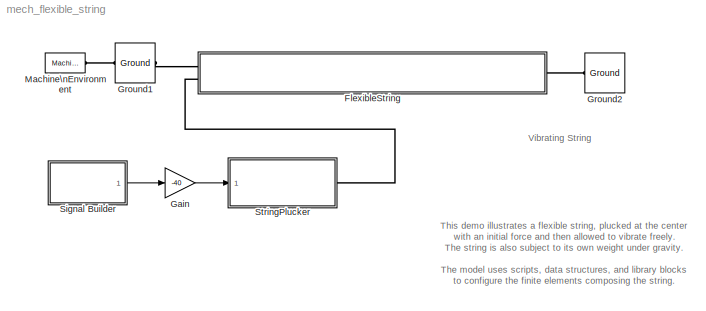
MODEL mech_flexible_string
KIND model
CONFIG InitFcn = \n%-----------------------------------------\n% Defined in the block mask now. I have left it here because it can be \n% used as a starting point of describing a material data file format\n%-----------------------------------------\nfBeamElement.material = 'Mild Steel';\n\n% Beam element density (Kg/m^3)\nfBeamElement.density = 7800;\n\n% Beam element Youngs Modulus (N/m^2)\nfBeamElement.youngsM =...<+518ch>
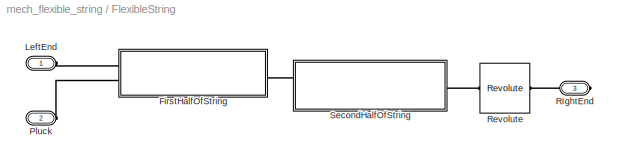
BLOCK [SubSystem] FlexibleString
  FunctionWithSeparateData = off
  MaskHideContents = off
  MinAlgLoopOccurrences = off
  Opaque = off
  Ports = [0, 0, 0, 0, 0, 2, 1]
  PropExecContextOutsideSubsystem = off
  RTWSystemCode = Auto
  RequestExecContextInheritance = off
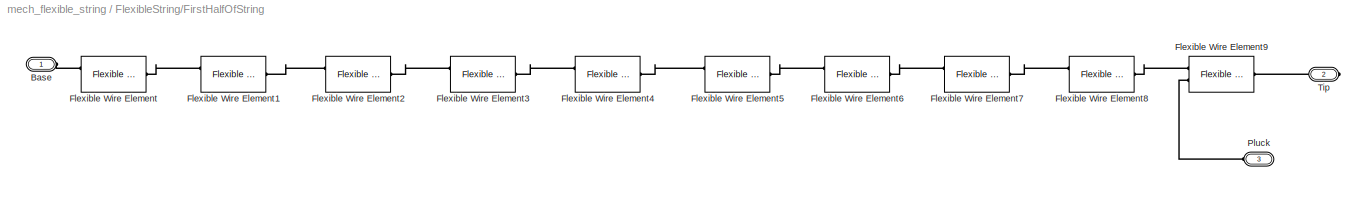
BLOCK [SubSystem] FlexibleString/FirstHalfOfString
  FunctionWithSeparateData = off
  MaskHideContents = off
  MinAlgLoopOccurrences = off
  Opaque = off
  Ports = [0, 0, 0, 0, 0, 2, 1]
  PropExecContextOutsideSubsystem = off
  RTWSystemCode = Auto
  RequestExecContextInheritance = off
BLOCK [PMIOPort] FlexibleString/FirstHalfOfString/Base
  Port = 1
  Side = Left
BLOCK [Reference] FlexibleString/FirstHalfOfString/Flexible Wire Element  REF=mech_flexible_element_lib/Flexible Wire Element  (lib defined in mdl_9af6a22eb84a)
  FunctionWithSeparateData = off
  Inertia = fBeamElement.Inertia
  Ports = [0, 0, 0, 0, 0, 2, 1]
  RTWMemSecDataConstants = Inherit from model
  RTWMemSecDataInternal = Inherit from model
  RTWMemSecDataParameters = Inherit from model
  RTWMemSecFuncExecute = Inherit from model
  RTWMemSecFuncInitTerm = Inherit from model
  ShowPortLabels = FromPortIcon
  SourceBlock = mech_flexible_element_lib/Flexible Wire Element
  SourceType = Flexible wire element
  SystemSampleTime = -1
  beamDir = fBeamElement.beamDir
  cgLeng = fBeamElement.cgLeng
  density = fBeamElement.density
  length = fBeamElement.length
  matDamping = fBeamElement.matDamping
  material = Mild Steel
  wireDia = fBeamElement.diameter
  youngsM = fBeamElement.youngsM
BLOCK [Reference] FlexibleString/FirstHalfOfString/Flexible Wire Element1  REF=mech_flexible_element_lib/Flexible Wire Element  (lib defined in mdl_9af6a22eb84a)
  FunctionWithSeparateData = off
  Inertia = fBeamElement.Inertia
  Ports = [0, 0, 0, 0, 0, 2, 1]
  RTWMemSecDataConstants = Inherit from model
  RTWMemSecDataInternal = Inherit from model
  RTWMemSecDataParameters = Inherit from model
  RTWMemSecFuncExecute = Inherit from model
  RTWMemSecFuncInitTerm = Inherit from model
  ShowPortLabels = FromPortIcon
  SourceBlock = mech_flexible_element_lib/Flexible Wire Element
  SourceType = Flexible wire element
  SystemSampleTime = -1
  beamDir = fBeamElement.beamDir
  cgLeng = fBeamElement.cgLeng
  density = fBeamElement.density
  length = fBeamElement.length
  matDamping = fBeamElement.matDamping
  material = Mild Steel
  wireDia = fBeamElement.diameter
  youngsM = fBeamElement.youngsM
BLOCK [Reference] FlexibleString/FirstHalfOfString/Flexible Wire Element2  REF=mech_flexible_element_lib/Flexible Wire Element  (lib defined in mdl_9af6a22eb84a)
  FunctionWithSeparateData = off
  Inertia = fBeamElement.Inertia
  Ports = [0, 0, 0, 0, 0, 2, 1]
  RTWMemSecDataConstants = Inherit from model
  RTWMemSecDataInternal = Inherit from model
  RTWMemSecDataParameters = Inherit from model
  RTWMemSecFuncExecute = Inherit from model
  RTWMemSecFuncInitTerm = Inherit from model
  ShowPortLabels = FromPortIcon
  SourceBlock = mech_flexible_element_lib/Flexible Wire Element
  SourceType = Flexible wire element
  SystemSampleTime = -1
  beamDir = fBeamElement.beamDir
  cgLeng = fBeamElement.cgLeng
  density = fBeamElement.density
  length = fBeamElement.length
  matDamping = fBeamElement.matDamping
  material = Mild Steel
  wireDia = fBeamElement.diameter
  youngsM = fBeamElement.youngsM
BLOCK [Reference] FlexibleString/FirstHalfOfString/Flexible Wire Element3  REF=mech_flexible_element_lib/Flexible Wire Element  (lib defined in mdl_9af6a22eb84a)
  FunctionWithSeparateData = off
  Inertia = fBeamElement.Inertia
  Ports = [0, 0, 0, 0, 0, 2, 1]
  RTWMemSecDataConstants = Inherit from model
  RTWMemSecDataInternal = Inherit from model
  RTWMemSecDataParameters = Inherit from model
  RTWMemSecFuncExecute = Inherit from model
  RTWMemSecFuncInitTerm = Inherit from model
  ShowPortLabels = FromPortIcon
  SourceBlock = mech_flexible_element_lib/Flexible Wire Element
  SourceType = Flexible wire element
  SystemSampleTime = -1
  beamDir = fBeamElement.beamDir
  cgLeng = fBeamElement.cgLeng
  density = fBeamElement.density
  length = fBeamElement.length
  matDamping = fBeamElement.matDamping
  material = Mild Steel
  wireDia = fBeamElement.diameter
  youngsM = fBeamElement.youngsM
BLOCK [Reference] FlexibleString/FirstHalfOfString/Flexible Wire Element4  REF=mech_flexible_element_lib/Flexible Wire Element  (lib defined in mdl_9af6a22eb84a)
  FunctionWithSeparateData = off
  Inertia = fBeamElement.Inertia
  Ports = [0, 0, 0, 0, 0, 2, 1]
  RTWMemSecDataConstants = Inherit from model
  RTWMemSecDataInternal = Inherit from model
  RTWMemSecDataParameters = Inherit from model
  RTWMemSecFuncExecute = Inherit from model
  RTWMemSecFuncInitTerm = Inherit from model
  ShowPortLabels = FromPortIcon
  SourceBlock = mech_flexible_element_lib/Flexible Wire Element
  SourceType = Flexible wire element
  SystemSampleTime = -1
  beamDir = fBeamElement.beamDir
  cgLeng = fBeamElement.cgLeng
  density = fBeamElement.density
  length = fBeamElement.length
  matDamping = fBeamElement.matDamping
  material = Mild Steel
  wireDia = fBeamElement.diameter
  youngsM = fBeamElement.youngsM
BLOCK [Reference] FlexibleString/FirstHalfOfString/Flexible Wire Element5  REF=mech_flexible_element_lib/Flexible Wire Element  (lib defined in mdl_9af6a22eb84a)
  FunctionWithSeparateData = off
  Inertia = fBeamElement.Inertia
  Ports = [0, 0, 0, 0, 0, 2, 1]
  RTWMemSecDataConstants = Inherit from model
  RTWMemSecDataInternal = Inherit from model
  RTWMemSecDataParameters = Inherit from model
  RTWMemSecFuncExecute = Inherit from model
  RTWMemSecFuncInitTerm = Inherit from model
  ShowPortLabels = FromPortIcon
  SourceBlock = mech_flexible_element_lib/Flexible Wire Element
  SourceType = Flexible wire element
  SystemSampleTime = -1
  beamDir = fBeamElement.beamDir
  cgLeng = fBeamElement.cgLeng
  density = fBeamElement.density
  length = fBeamElement.length
  matDamping = fBeamElement.matDamping
  material = Mild Steel
  wireDia = fBeamElement.diameter
  youngsM = fBeamElement.youngsM
BLOCK [Reference] FlexibleString/FirstHalfOfString/Flexible Wire Element6  REF=mech_flexible_element_lib/Flexible Wire Element  (lib defined in mdl_9af6a22eb84a)
  FunctionWithSeparateData = off
  Inertia = fBeamElement.Inertia
  Ports = [0, 0, 0, 0, 0, 2, 1]
  RTWMemSecDataConstants = Inherit from model
  RTWMemSecDataInternal = Inherit from model
  RTWMemSecDataParameters = Inherit from model
  RTWMemSecFuncExecute = Inherit from model
  RTWMemSecFuncInitTerm = Inherit from model
  ShowPortLabels = FromPortIcon
  SourceBlock = mech_flexible_element_lib/Flexible Wire Element
  SourceType = Flexible wire element
  SystemSampleTime = -1
  beamDir = fBeamElement.beamDir
  cgLeng = fBeamElement.cgLeng
  density = fBeamElement.density
  length = fBeamElement.length
  matDamping = fBeamElement.matDamping
  material = Mild Steel
  wireDia = fBeamElement.diameter
  youngsM = fBeamElement.youngsM
BLOCK [Reference] FlexibleString/FirstHalfOfString/Flexible Wire Element7  REF=mech_flexible_element_lib/Flexible Wire Element  (lib defined in mdl_9af6a22eb84a)
  FunctionWithSeparateData = off
  Inertia = fBeamElement.Inertia
  Ports = [0, 0, 0, 0, 0, 2, 1]
  RTWMemSecDataConstants = Inherit from model
  RTWMemSecDataInternal = Inherit from model
  RTWMemSecDataParameters = Inherit from model
  RTWMemSecFuncExecute = Inherit from model
  RTWMemSecFuncInitTerm = Inherit from model
  ShowPortLabels = FromPortIcon
  SourceBlock = mech_flexible_element_lib/Flexible Wire Element
  SourceType = Flexible wire element
  SystemSampleTime = -1
  beamDir = fBeamElement.beamDir
  cgLeng = fBeamElement.cgLeng
  density = fBeamElement.density
  length = fBeamElement.length
  matDamping = fBeamElement.matDamping
  material = Mild Steel
  wireDia = fBeamElement.diameter
  youngsM = fBeamElement.youngsM
BLOCK [Reference] FlexibleString/FirstHalfOfString/Flexible Wire Element8  REF=mech_flexible_element_lib/Flexible Wire Element  (lib defined in mdl_9af6a22eb84a)
  FunctionWithSeparateData = off
  Inertia = fBeamElement.Inertia
  Ports = [0, 0, 0, 0, 0, 2, 1]
  RTWMemSecDataConstants = Inherit from model
  RTWMemSecDataInternal = Inherit from model
  RTWMemSecDataParameters = Inherit from model
  RTWMemSecFuncExecute = Inherit from model
  RTWMemSecFuncInitTerm = Inherit from model
  ShowPortLabels = FromPortIcon
  SourceBlock = mech_flexible_element_lib/Flexible Wire Element
  SourceType = Flexible wire element
  SystemSampleTime = -1
  beamDir = fBeamElement.beamDir
  cgLeng = fBeamElement.cgLeng
  density = fBeamElement.density
  length = fBeamElement.length
  matDamping = fBeamElement.matDamping
  material = Mild Steel
  wireDia = fBeamElement.diameter
  youngsM = fBeamElement.youngsM
BLOCK [Reference] FlexibleString/FirstHalfOfString/Flexible Wire Element9  REF=mech_flexible_element_lib/Flexible Wire Element  (lib defined in mdl_9af6a22eb84a)
  FunctionWithSeparateData = off
  Inertia = fBeamElement.Inertia
  Ports = [0, 0, 0, 0, 0, 2, 1]
  RTWMemSecDataConstants = Inherit from model
  RTWMemSecDataInternal = Inherit from model
  RTWMemSecDataParameters = Inherit from model
  RTWMemSecFuncExecute = Inherit from model
  RTWMemSecFuncInitTerm = Inherit from model
  ShowPortLabels = FromPortIcon
  SourceBlock = mech_flexible_element_lib/Flexible Wire Element
  SourceType = Flexible wire element
  SystemSampleTime = -1
  beamDir = fBeamElement.beamDir
  cgLeng = fBeamElement.cgLeng
  density = fBeamElement.density
  length = fBeamElement.length
  matDamping = fBeamElement.matDamping
  material = Mild Steel
  wireDia = fBeamElement.diameter
  youngsM = fBeamElement.youngsM
BLOCK [PMIOPort] FlexibleString/FirstHalfOfString/Pluck
  Port = 3
  Side = Left
BLOCK [PMIOPort] FlexibleString/FirstHalfOfString/Tip
  Port = 2
  Side = Right
BLOCK [PMIOPort] FlexibleString/LeftEnd
  Port = 1
  Side = Left
BLOCK [PMIOPort] FlexibleString/Pluck
  Port = 2
  Side = Left
BLOCK [PMIOPort] FlexibleString/RIghtEnd
  Port = 3
  Side = Right
BLOCK [Reference] FlexibleString/Revolute  REF=mblibv1/Joints/Revolute
  ClassName = Joint
  CutJoint = off
  DialogClass = JointBlock
  DialogController = MECH.DynMechDlgSource
  LConnTagsString = __newl0
  LeftPortType = blob
  MarkAsCut = off
  NumSAPorts = 0
  PhysicalDomain = mechanical
  Ports = [0, 0, 0, 0, 0, 1, 1]
  PrimitiveProps = R1$INERTIAL$[0 0 1]$revolute
  Primitives = revolute
  R1Axis = [0 0 1]
  RConnTagsString = __newr0
  RightPortType = blob
  SourceBlock = mblibv1/Joints/Revolute
  SourceType = Revolute
  SubClassName = Unknown
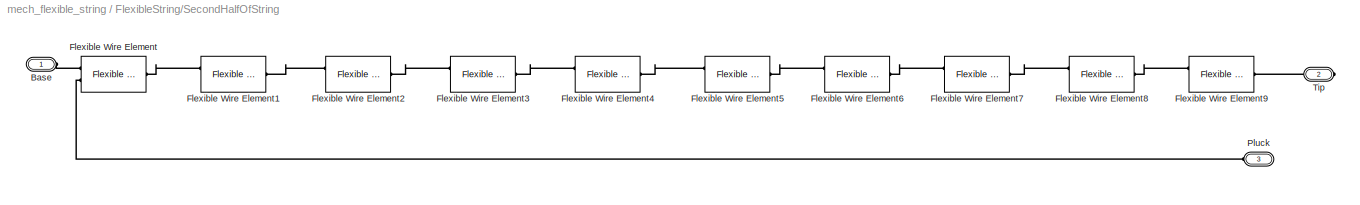
BLOCK [SubSystem] FlexibleString/SecondHalfOfString
  FunctionWithSeparateData = off
  MaskHideContents = off
  MinAlgLoopOccurrences = off
  Opaque = off
  Ports = [0, 0, 0, 0, 0, 2, 1]
  PropExecContextOutsideSubsystem = off
  RTWSystemCode = Auto
  RequestExecContextInheritance = off
BLOCK [PMIOPort] FlexibleString/SecondHalfOfString/Base
  Port = 1
  Side = Left
BLOCK [Reference] FlexibleString/SecondHalfOfString/Flexible Wire Element  REF=mech_flexible_element_lib/Flexible Wire Element  (lib defined in mdl_9af6a22eb84a)
  FunctionWithSeparateData = off
  Inertia = fBeamElement.Inertia
  Ports = [0, 0, 0, 0, 0, 2, 1]
  RTWMemSecDataConstants = Inherit from model
  RTWMemSecDataInternal = Inherit from model
  RTWMemSecDataParameters = Inherit from model
  RTWMemSecFuncExecute = Inherit from model
  RTWMemSecFuncInitTerm = Inherit from model
  ShowPortLabels = FromPortIcon
  SourceBlock = mech_flexible_element_lib/Flexible Wire Element
  SourceType = Flexible wire element
  SystemSampleTime = -1
  beamDir = fBeamElement.beamDir
  cgLeng = fBeamElement.cgLeng
  density = fBeamElement.density
  length = fBeamElement.length
  matDamping = fBeamElement.matDamping
  material = Mild Steel
  wireDia = fBeamElement.diameter
  youngsM = fBeamElement.youngsM
BLOCK [Reference] FlexibleString/SecondHalfOfString/Flexible Wire Element1  REF=mech_flexible_element_lib/Flexible Wire Element  (lib defined in mdl_9af6a22eb84a)
  FunctionWithSeparateData = off
  Inertia = fBeamElement.Inertia
  Ports = [0, 0, 0, 0, 0, 2, 1]
  RTWMemSecDataConstants = Inherit from model
  RTWMemSecDataInternal = Inherit from model
  RTWMemSecDataParameters = Inherit from model
  RTWMemSecFuncExecute = Inherit from model
  RTWMemSecFuncInitTerm = Inherit from model
  ShowPortLabels = FromPortIcon
  SourceBlock = mech_flexible_element_lib/Flexible Wire Element
  SourceType = Flexible wire element
  SystemSampleTime = -1
  beamDir = fBeamElement.beamDir
  cgLeng = fBeamElement.cgLeng
  density = fBeamElement.density
  length = fBeamElement.length
  matDamping = fBeamElement.matDamping
  material = Mild Steel
  wireDia = fBeamElement.diameter
  youngsM = fBeamElement.youngsM
BLOCK [Reference] FlexibleString/SecondHalfOfString/Flexible Wire Element2  REF=mech_flexible_element_lib/Flexible Wire Element  (lib defined in mdl_9af6a22eb84a)
  FunctionWithSeparateData = off
  Inertia = fBeamElement.Inertia
  Ports = [0, 0, 0, 0, 0, 2, 1]
  RTWMemSecDataConstants = Inherit from model
  RTWMemSecDataInternal = Inherit from model
  RTWMemSecDataParameters = Inherit from model
  RTWMemSecFuncExecute = Inherit from model
  RTWMemSecFuncInitTerm = Inherit from model
  ShowPortLabels = FromPortIcon
  SourceBlock = mech_flexible_element_lib/Flexible Wire Element
  SourceType = Flexible wire element
  SystemSampleTime = -1
  beamDir = fBeamElement.beamDir
  cgLeng = fBeamElement.cgLeng
  density = fBeamElement.density
  length = fBeamElement.length
  matDamping = fBeamElement.matDamping
  material = Mild Steel
  wireDia = fBeamElement.diameter
  youngsM = fBeamElement.youngsM
BLOCK [Reference] FlexibleString/SecondHalfOfString/Flexible Wire Element3  REF=mech_flexible_element_lib/Flexible Wire Element  (lib defined in mdl_9af6a22eb84a)
  FunctionWithSeparateData = off
  Inertia = fBeamElement.Inertia
  Ports = [0, 0, 0, 0, 0, 2, 1]
  RTWMemSecDataConstants = Inherit from model
  RTWMemSecDataInternal = Inherit from model
  RTWMemSecDataParameters = Inherit from model
  RTWMemSecFuncExecute = Inherit from model
  RTWMemSecFuncInitTerm = Inherit from model
  ShowPortLabels = FromPortIcon
  SourceBlock = mech_flexible_element_lib/Flexible Wire Element
  SourceType = Flexible wire element
  SystemSampleTime = -1
  beamDir = fBeamElement.beamDir
  cgLeng = fBeamElement.cgLeng
  density = fBeamElement.density
  length = fBeamElement.length
  matDamping = fBeamElement.matDamping
  material = Mild Steel
  wireDia = fBeamElement.diameter
  youngsM = fBeamElement.youngsM
BLOCK [Reference] FlexibleString/SecondHalfOfString/Flexible Wire Element4  REF=mech_flexible_element_lib/Flexible Wire Element  (lib defined in mdl_9af6a22eb84a)
  FunctionWithSeparateData = off
  Inertia = fBeamElement.Inertia
  Ports = [0, 0, 0, 0, 0, 2, 1]
  RTWMemSecDataConstants = Inherit from model
  RTWMemSecDataInternal = Inherit from model
  RTWMemSecDataParameters = Inherit from model
  RTWMemSecFuncExecute = Inherit from model
  RTWMemSecFuncInitTerm = Inherit from model
  ShowPortLabels = FromPortIcon
  SourceBlock = mech_flexible_element_lib/Flexible Wire Element
  SourceType = Flexible wire element
  SystemSampleTime = -1
  beamDir = fBeamElement.beamDir
  cgLeng = fBeamElement.cgLeng
  density = fBeamElement.density
  length = fBeamElement.length
  matDamping = fBeamElement.matDamping
  material = Mild Steel
  wireDia = fBeamElement.diameter
  youngsM = fBeamElement.youngsM
BLOCK [Reference] FlexibleString/SecondHalfOfString/Flexible Wire Element5  REF=mech_flexible_element_lib/Flexible Wire Element  (lib defined in mdl_9af6a22eb84a)
  FunctionWithSeparateData = off
  Inertia = fBeamElement.Inertia
  Ports = [0, 0, 0, 0, 0, 2, 1]
  RTWMemSecDataConstants = Inherit from model
  RTWMemSecDataInternal = Inherit from model
  RTWMemSecDataParameters = Inherit from model
  RTWMemSecFuncExecute = Inherit from model
  RTWMemSecFuncInitTerm = Inherit from model
  ShowPortLabels = FromPortIcon
  SourceBlock = mech_flexible_element_lib/Flexible Wire Element
  SourceType = Flexible wire element
  SystemSampleTime = -1
  beamDir = fBeamElement.beamDir
  cgLeng = fBeamElement.cgLeng
  density = fBeamElement.density
  length = fBeamElement.length
  matDamping = fBeamElement.matDamping
  material = Mild Steel
  wireDia = fBeamElement.diameter
  youngsM = fBeamElement.youngsM
BLOCK [Reference] FlexibleString/SecondHalfOfString/Flexible Wire Element6  REF=mech_flexible_element_lib/Flexible Wire Element  (lib defined in mdl_9af6a22eb84a)
  FunctionWithSeparateData = off
  Inertia = fBeamElement.Inertia
  Ports = [0, 0, 0, 0, 0, 2, 1]
  RTWMemSecDataConstants = Inherit from model
  RTWMemSecDataInternal = Inherit from model
  RTWMemSecDataParameters = Inherit from model
  RTWMemSecFuncExecute = Inherit from model
  RTWMemSecFuncInitTerm = Inherit from model
  ShowPortLabels = FromPortIcon
  SourceBlock = mech_flexible_element_lib/Flexible Wire Element
  SourceType = Flexible wire element
  SystemSampleTime = -1
  beamDir = fBeamElement.beamDir
  cgLeng = fBeamElement.cgLeng
  density = fBeamElement.density
  length = fBeamElement.length
  matDamping = fBeamElement.matDamping
  material = Mild Steel
  wireDia = fBeamElement.diameter
  youngsM = fBeamElement.youngsM
BLOCK [Reference] FlexibleString/SecondHalfOfString/Flexible Wire Element7  REF=mech_flexible_element_lib/Flexible Wire Element  (lib defined in mdl_9af6a22eb84a)
  FunctionWithSeparateData = off
  Inertia = fBeamElement.Inertia
  Ports = [0, 0, 0, 0, 0, 2, 1]
  RTWMemSecDataConstants = Inherit from model
  RTWMemSecDataInternal = Inherit from model
  RTWMemSecDataParameters = Inherit from model
  RTWMemSecFuncExecute = Inherit from model
  RTWMemSecFuncInitTerm = Inherit from model
  ShowPortLabels = FromPortIcon
  SourceBlock = mech_flexible_element_lib/Flexible Wire Element
  SourceType = Flexible wire element
  SystemSampleTime = -1
  beamDir = fBeamElement.beamDir
  cgLeng = fBeamElement.cgLeng
  density = fBeamElement.density
  length = fBeamElement.length
  matDamping = fBeamElement.matDamping
  material = Mild Steel
  wireDia = fBeamElement.diameter
  youngsM = fBeamElement.youngsM
BLOCK [Reference] FlexibleString/SecondHalfOfString/Flexible Wire Element8  REF=mech_flexible_element_lib/Flexible Wire Element  (lib defined in mdl_9af6a22eb84a)
  FunctionWithSeparateData = off
  Inertia = fBeamElement.Inertia
  Ports = [0, 0, 0, 0, 0, 2, 1]
  RTWMemSecDataConstants = Inherit from model
  RTWMemSecDataInternal = Inherit from model
  RTWMemSecDataParameters = Inherit from model
  RTWMemSecFuncExecute = Inherit from model
  RTWMemSecFuncInitTerm = Inherit from model
  ShowPortLabels = FromPortIcon
  SourceBlock = mech_flexible_element_lib/Flexible Wire Element
  SourceType = Flexible wire element
  SystemSampleTime = -1
  beamDir = fBeamElement.beamDir
  cgLeng = fBeamElement.cgLeng
  density = fBeamElement.density
  length = fBeamElement.length
  matDamping = fBeamElement.matDamping
  material = Mild Steel
  wireDia = fBeamElement.diameter
  youngsM = fBeamElement.youngsM
BLOCK [Reference] FlexibleString/SecondHalfOfString/Flexible Wire Element9  REF=mech_flexible_element_lib/Flexible Wire Element  (lib defined in mdl_9af6a22eb84a)
  FunctionWithSeparateData = off
  Inertia = fBeamElement.Inertia
  Ports = [0, 0, 0, 0, 0, 2, 1]
  RTWMemSecDataConstants = Inherit from model
  RTWMemSecDataInternal = Inherit from model
  RTWMemSecDataParameters = Inherit from model
  RTWMemSecFuncExecute = Inherit from model
  RTWMemSecFuncInitTerm = Inherit from model
  ShowPortLabels = FromPortIcon
  SourceBlock = mech_flexible_element_lib/Flexible Wire Element
  SourceType = Flexible wire element
  SystemSampleTime = -1
  beamDir = fBeamElement.beamDir
  cgLeng = fBeamElement.cgLeng
  density = fBeamElement.density
  length = fBeamElement.length
  matDamping = fBeamElement.matDamping
  material = Mild Steel
  wireDia = fBeamElement.diameter
  youngsM = fBeamElement.youngsM
BLOCK [PMIOPort] FlexibleString/SecondHalfOfString/Pluck
  Port = 3
  Side = Left
BLOCK [PMIOPort] FlexibleString/SecondHalfOfString/Tip
  Port = 2
  Side = Right
BLOCK [Gain] Gain
  Gain = -40
  OutDataType = sfix(16)
  OutDataTypeMode = Inherit via internal rule
  OutDataTypeStr = Inherit: Inherit via internal rule
  OutScaling = 2^0
  ParamDataTypeStr = Inherit: Inherit via internal rule
  ParameterDataType = sfix(16)
  ParameterDataTypeMode = Inherit via internal rule
  ParameterScaling = 2^0
  SaturateOnIntegerOverflow = off
BLOCK [Reference] Ground1  REF=mblibv1/Bodies/Ground
  ClassName = Ground
  CoordPosition = [0 0 0]
  CoordPositionUnits = m
  DialogClass = GroundBlock
  DialogController = MECH.DynMechDlgSource
  FunctionWithSeparateData = off
  LeftPortType = env
  MachineId = [0 0]
  PhysicalDomain = Mechanical
  Ports = [0, 0, 0, 0, 0, 1, 1]
  RTWMemSecDataConstants = Inherit from model
  RTWMemSecDataInternal = Inherit from model
  RTWMemSecDataParameters = Inherit from model
  RTWMemSecFuncExecute = Inherit from model
  RTWMemSecFuncInitTerm = Inherit from model
  RightPortType = workingframe
  ShowEnvPort = on
  ShowPortLabels = FromPortIcon
  SourceBlock = mblibv1/Bodies/Ground
  SourceType = Ground
  StateVectorMgrId = -1
  SystemSampleTime = -1
  UserData = DataTag0
  UserDataPersistent = on
BLOCK [Reference] Ground2  REF=mblibv1/Bodies/Ground
  ClassName = Ground
  CoordPosition = [1 0 0]
  CoordPositionUnits = m
  DialogClass = GroundBlock
  DialogController = MECH.DynMechDlgSource
  FunctionWithSeparateData = off
  LeftPortType = env
  MachineId = [0 0]
  PhysicalDomain = Mechanical
  Ports = [0, 0, 0, 0, 0, 0, 1]
  RTWMemSecDataConstants = Inherit from model
  RTWMemSecDataInternal = Inherit from model
  RTWMemSecDataParameters = Inherit from model
  RTWMemSecFuncExecute = Inherit from model
  RTWMemSecFuncInitTerm = Inherit from model
  RightPortType = workingframe
  ShowEnvPort = off
  ShowPortLabels = FromPortIcon
  SourceBlock = mblibv1/Bodies/Ground
  SourceType = Ground
  StateVectorMgrId = -1
  SystemSampleTime = -1
  UserData = DataTag1
  UserDataPersistent = on
BLOCK [Reference] Machine\nEnvironment  REF=mblibv1/Bodies/Machine\nEnvironment
  AnalysisType = Forward dynamics
  AngularAssemblyTolerance = 1e-3
  AngularAssemblyToleranceUnits = rad
  ClassName = Environment
  ConstraintAbsTolerance = 1e-4
  ConstraintRelTolerance = 1e-4
  ConstraintSolverType = Machine precision
  DialogController = MECH.DialogSource
  DialogTemplateClass = MECH.MachineEnvironment
  Dimensionality = Auto-detect
  FunctionWithSeparateData = off
  Gravity = [0 -9.81 0]
  GravityAsSignal = off
  GravityUnits = m/s^2
  LinearAssemblyTolerance = 1e-3
  LinearAssemblyToleranceUnits = m
  PerturbationSize = 1e-5
  PhysicalDomain = Mechanical
  PortType = env
  Ports = [0, 0, 0, 0, 0, 0, 1]
  RTWMemSecDataConstants = Inherit from model
  RTWMemSecDataInternal = Inherit from model
  RTWMemSecDataParameters = Inherit from model
  RTWMemSecFuncExecute = Inherit from model
  RTWMemSecFuncInitTerm = Inherit from model
  RedundancyAnalysisTolerance = 1e-14
  RedundancyAnalysisToleranceType = Automatically select tolerance
  ShowPortLabels = FromPortIcon
  SourceBlock = mblibv1/Bodies/Machine\nEnvironment
  SourceType = Machine Environment
  StatePerturbationType = Fixed
  SyncWhenCopied = off
  SystemSampleTime = -1
  Tag = Factory ground
  UseRobustSingularityHandling = off
  VisualizeMachine = on
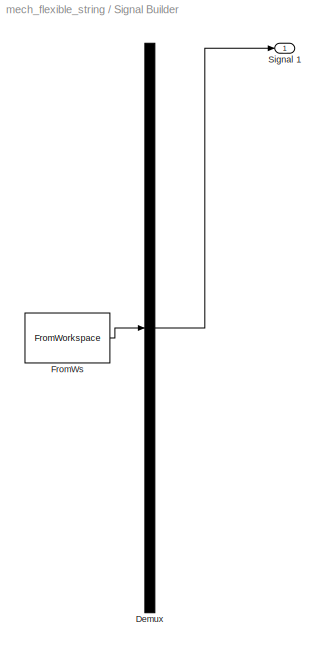
BLOCK [SubSystem] Signal Builder
  AncestorBlock = mech_flexible_element_lib/FlexibleElementActuator/Signal Builder
  ClipboardFcn = sigbuilder_block('clipboard');
  CloseFcn = sigbuilder_block('close');
  CopyFcn = sigbuilder_block('copy');
  DeleteFcn = sigbuilder_block('delete');
  FunctionWithSeparateData = off
  LoadFcn = sigbuilder_block('load');
  MaskDescription = Sigbuilder GUI
  MaskDisplay = plot(0,0,100,100,[10,10,40,40,10],[80,20,20,80,80],[40,10],[50,50], [40,27,10],[65,72,56],[40,25,25,10],[28,28,43,43]);
  MaskHideContents = off
  MaskIconFrame = on
  MaskIconOpaque = off
  MaskIconRotate = port
  MaskIconUnits = autoscale
  MaskInitialization = if ~strcmp(get_param(bdroot(gcbh),'SimulationStatus'),'stopped') tuvar = sigbuilder_block('maskInit'); end
  MaskType = Sigbuilder block
  MinAlgLoopOccurrences = off
  ModelCloseFcn = sigbuilder_block('modelClose');
  NameChangeFcn = sigbuilder_block('namechange');
  Opaque = off
  OpenFcn = sigbuilder_block('open',[63.75 88.5 550.5 399.75 ]);
  Ports = [0, 1]
  PreSaveFcn = sigbuilder_block('preSave');
  PropExecContextOutsideSubsystem = off
  RTWSystemCode = Auto
  RequestExecContextInheritance = off
  StartFcn = sigbuilder_block('start');
  StopFcn = sigbuilder_block('stop');
  Tag = STV Subsys
BLOCK [Demux] Signal Builder/Demux
  Outputs = 1
  Ports = [1, 1]
  Tag = STV Demux
BLOCK [FromWorkspace] Signal Builder/FromWs
  SampleTime = 0
  SigBuilderData = DataTag2
  Tag = STV FromWs
  VariableName = tuvar
  VnvData = DataTag3
  ZeroCross = on
BLOCK [Outport] Signal Builder/Signal 1
  IconDisplay = Port number
  OutDataType = sfix(16)
  OutScaling = 2^0
  Tag = STV Outport
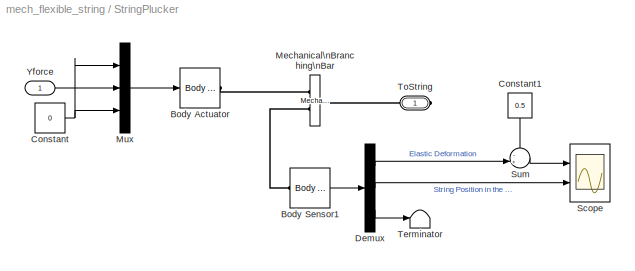
BLOCK [SubSystem] StringPlucker
  FunctionWithSeparateData = off
  MaskHideContents = off
  MinAlgLoopOccurrences = off
  Opaque = off
  Ports = [1, 0, 0, 0, 0, 0, 1]
  PropExecContextOutsideSubsystem = off
  RTWSystemCode = Auto
  RequestExecContextInheritance = off
BLOCK [Reference] StringPlucker/Body Actuator  REF=mblibv1/Sensors & \nActuators/Body Actuator
  AccelerationUnits = m/s^2
  ActiveIO = on
  ActuationStyle = Force
  Angle = off
  AngleUnits = deg
  ArcAccelerationUnits = deg/s^2
  ArcVelocityUnits = deg/s
  ClassName = BodyActuatorForceTorque
  CoordPosition = on
  CoordPositionUnits = m
  DialogClass = MechanicalActuatorBlock
  DialogController = MECH.DynMechDlgSource
  Force = on
  ForceUnits = N
  FunctionWithSeparateData = off
  PhysicalDomain = Mechanical
  PortType = blob
  Ports = [1, 0, 0, 0, 0, 0, 1]
  RTWMemSecDataConstants = Inherit from model
  RTWMemSecDataInternal = Inherit from model
  RTWMemSecDataParameters = Inherit from model
  RTWMemSecFuncExecute = Inherit from model
  RTWMemSecFuncInitTerm = Inherit from model
  ReferenceFrame = Absolute (World)
  ShowPortLabels = FromPortIcon
  SourceBlock = mblibv1/Sensors & \nActuators/Body Actuator
  SourceType = Body Actuator
  SystemSampleTime = -1
  Torque = off
  TorqueUnits = N-m
  VelocityUnits = m/s
  Width = 3
BLOCK [Reference] StringPlucker/Body Sensor1  REF=mblibv1/Sensors & \nActuators/Body Sensor
  Acceleration = off
  AccelerationUnits = m/s^2
  ActiveIO = on
  Angle = on
  AngleUnits = deg
  ArcAcceleration = off
  ArcAccelerationUnits = deg/s^2
  ArcVelocity = off
  ArcVelocityUnits = rad/s
  ClassName = BodySensor
  CoordPosition = on
  CoordPositionUnits = m
  DialogClass = MechanicalSensorBlock
  DialogController = MECH.DynMechDlgSource
  FunctionWithSeparateData = off
  Muxed = on
  OutputVector = [ 3 ]
  PhysicalDomain = Mechanical
  PortType = blob
  Ports = [0, 1, 0, 0, 0, 1]
  Pose = off
  Quaternion = on
  QuaternionDDT = off
  QuaternionDT = off
  QuaternionUnits = off
  RTWMemSecDataConstants = Inherit from model
  RTWMemSecDataInternal = Inherit from model
  RTWMemSecDataParameters = Inherit from model
  RTWMemSecFuncExecute = Inherit from model
  RTWMemSecFuncInitTerm = Inherit from model
  ReferenceFrame = Absolute (World)
  ShowPortLabels = FromPortIcon
  SourceBlock = mblibv1/Sensors & \nActuators/Body Sensor
  SourceType = Body Sensor
  SystemSampleTime = -1
  Velocity = off
  VelocityUnits = m/s
  Width = 3
BLOCK [Constant] StringPlucker/Constant
  OutDataType = sfix(16)
  OutScaling = 2^0
  Value = 0
BLOCK [Constant] StringPlucker/Constant1
  OutDataType = sfix(16)
  OutScaling = 2^0
  Value = 0.5
BLOCK [Demux] StringPlucker/Demux
  DisplayOption = bar
  Outputs = 3
  Ports = [1, 3]
BLOCK [Reference] StringPlucker/Mechanical\nBranching\nBar  REF=mblibv1/Utilities/Mechanical\nBranching\nBar
  ClassName = BranchingBar
  DialogClass = MechanicalBranchingBarBlock
  DialogController = MECH.DynMechDlgSource
  LConnTagsString = _newl0
  LeftPortType = blob
  NumSAPorts = 2
  PhysicalDomain = mechanical
  Ports = [0, 0, 0, 0, 0, 1, 2]
  RConnTagsString = SA0|SA1
  RightPortType = blob
  SourceBlock = mblibv1/Utilities/Mechanical\nBranching\nBar
  SourceType = Mechanical Branching Bar
  SubClassName = Unknown
BLOCK [Mux] StringPlucker/Mux
  DisplayOption = bar
  Inputs = 3
  Ports = [3, 1]
BLOCK [Scope] StringPlucker/Scope
  DataFormat = StructureWithTime
  Floating = off
  NumInputPorts = 2
  Ports = [2]
  SampleTime = 0
  TimeRange = 1.4
  YMax = 0.01~0.5
  YMin = -0.02~-1
BLOCK [Sum] StringPlucker/Sum
  IconShape = round
  InputSameDT = off
  Inputs = -+|
  OutDataType = sfix(16)
  OutDataTypeMode = Inherit via internal rule
  OutDataTypeStr = Inherit: Inherit via internal rule
  OutScaling = 2^0
  Ports = [2, 1]
  SaturateOnIntegerOverflow = off
BLOCK [Terminator] StringPlucker/Terminator
BLOCK [PMIOPort] StringPlucker/ToString
  Port = 1
  Side = Right
BLOCK [Inport] StringPlucker/Yforce
  IconDisplay = Port number
  OutDataType = sfix(16)
  OutScaling = 2^0
ANNOTATION (root): This demo illustrates a flexible string, plucked at the center\nwith an initial force and then allowed to vibrate freely.\nThe string is also subject to its own weight under gravity.\n\nThe model uses scripts, data structures, and library blocks\nto configure the finite elements composing the string.\n\n- Reference -\n\nKlaus-Jurgen Bathe, Finite Element Procedures, Prentice Hall Inc, 1996
ANNOTATION (root): Vibrating String
LINE Gain:1 -> StringPlucker:1
LINE Signal Builder/Demux:1 -> Signal Builder/Signal 1:1
LINE Signal Builder/FromWs:1 -> Signal Builder/Demux:1
LINE Signal Builder:1 -> Gain:1
LINE StringPlucker/Body Sensor1:1 -> StringPlucker/Demux:1
LINE StringPlucker/Constant1:1 -> StringPlucker/Sum:1
NET StringPlucker/Constant:1 -> StringPlucker/Mux:1, StringPlucker/Mux:3
LINE StringPlucker/Demux:1 -> StringPlucker/Sum:2
LINE StringPlucker/Demux:2 -> StringPlucker/Scope:2
LINE StringPlucker/Demux:3 -> StringPlucker/Terminator:1
LINE StringPlucker/Mux:1 -> StringPlucker/Body Actuator:1
LINE StringPlucker/Sum:1 -> StringPlucker/Scope:1
LINE StringPlucker/Yforce:1 -> StringPlucker/Mux:2
PLINE FlexibleString/FirstHalfOfString/Base:RConn1 -- FlexibleString/FirstHalfOfString/Flexible Wire Element:LConn1
PLINE FlexibleString/FirstHalfOfString/Flexible Wire Element1:LConn1 -- FlexibleString/FirstHalfOfString/Flexible Wire Element:RConn1
PLINE FlexibleString/FirstHalfOfString/Flexible Wire Element1:RConn1 -- FlexibleString/FirstHalfOfString/Flexible Wire Element2:LConn1
PLINE FlexibleString/FirstHalfOfString/Flexible Wire Element2:RConn1 -- FlexibleString/FirstHalfOfString/Flexible Wire Element3:LConn1
PLINE FlexibleString/FirstHalfOfString/Flexible Wire Element3:RConn1 -- FlexibleString/FirstHalfOfString/Flexible Wire Element4:LConn1
PLINE FlexibleString/FirstHalfOfString/Flexible Wire Element4:RConn1 -- FlexibleString/FirstHalfOfString/Flexible Wire Element5:LConn1
PLINE FlexibleString/FirstHalfOfString/Flexible Wire Element5:RConn1 -- FlexibleString/FirstHalfOfString/Flexible Wire Element6:LConn1
PLINE FlexibleString/FirstHalfOfString/Flexible Wire Element6:RConn1 -- FlexibleString/FirstHalfOfString/Flexible Wire Element7:LConn1
PLINE FlexibleString/FirstHalfOfString/Flexible Wire Element7:RConn1 -- FlexibleString/FirstHalfOfString/Flexible Wire Element8:LConn1
PLINE FlexibleString/FirstHalfOfString/Flexible Wire Element8:RConn1 -- FlexibleString/FirstHalfOfString/Flexible Wire Element9:LConn1
PLINE FlexibleString/FirstHalfOfString/Flexible Wire Element9:LConn2 -- FlexibleString/FirstHalfOfString/Pluck:RConn1
PLINE FlexibleString/FirstHalfOfString/Flexible Wire Element9:RConn1 -- FlexibleString/FirstHalfOfString/Tip:RConn1
PLINE FlexibleString/FirstHalfOfString:LConn1 -- FlexibleString/LeftEnd:RConn1
PLINE FlexibleString/FirstHalfOfString:LConn2 -- FlexibleString/Pluck:RConn1
PLINE FlexibleString/FirstHalfOfString:RConn1 -- FlexibleString/SecondHalfOfString:LConn1
PLINE FlexibleString/RIghtEnd:RConn1 -- FlexibleString/Revolute:RConn1
PLINE FlexibleString/Revolute:LConn1 -- FlexibleString/SecondHalfOfString:RConn1
PLINE FlexibleString/SecondHalfOfString/Base:RConn1 -- FlexibleString/SecondHalfOfString/Flexible Wire Element:LConn1
PLINE FlexibleString/SecondHalfOfString/Flexible Wire Element1:LConn1 -- FlexibleString/SecondHalfOfString/Flexible Wire Element:RConn1
PLINE FlexibleString/SecondHalfOfString/Flexible Wire Element1:RConn1 -- FlexibleString/SecondHalfOfString/Flexible Wire Element2:LConn1
PLINE FlexibleString/SecondHalfOfString/Flexible Wire Element2:RConn1 -- FlexibleString/SecondHalfOfString/Flexible Wire Element3:LConn1
PLINE FlexibleString/SecondHalfOfString/Flexible Wire Element3:RConn1 -- FlexibleString/SecondHalfOfString/Flexible Wire Element4:LConn1
PLINE FlexibleString/SecondHalfOfString/Flexible Wire Element4:RConn1 -- FlexibleString/SecondHalfOfString/Flexible Wire Element5:LConn1
PLINE FlexibleString/SecondHalfOfString/Flexible Wire Element5:RConn1 -- FlexibleString/SecondHalfOfString/Flexible Wire Element6:LConn1
PLINE FlexibleString/SecondHalfOfString/Flexible Wire Element6:RConn1 -- FlexibleString/SecondHalfOfString/Flexible Wire Element7:LConn1
PLINE FlexibleString/SecondHalfOfString/Flexible Wire Element7:RConn1 -- FlexibleString/SecondHalfOfString/Flexible Wire Element8:LConn1
PLINE FlexibleString/SecondHalfOfString/Flexible Wire Element8:RConn1 -- FlexibleString/SecondHalfOfString/Flexible Wire Element9:LConn1
PLINE FlexibleString/SecondHalfOfString/Flexible Wire Element9:RConn1 -- FlexibleString/SecondHalfOfString/Tip:RConn1
PLINE FlexibleString/SecondHalfOfString/Flexible Wire Element:LConn2 -- FlexibleString/SecondHalfOfString/Pluck:RConn1
PLINE FlexibleString:LConn1 -- Ground1:RConn1
PLINE FlexibleString:LConn2 -- StringPlucker:RConn1
PLINE FlexibleString:RConn1 -- Ground2:RConn1
PLINE Ground1:LConn1 -- Machine\nEnvironment:RConn1
PLINE StringPlucker/Body Actuator:RConn1 -- StringPlucker/Mechanical\nBranching\nBar:RConn1
PLINE StringPlucker/Body Sensor1:LConn1 -- StringPlucker/Mechanical\nBranching\nBar:RConn2
PLINE StringPlucker/Mechanical\nBranching\nBar:LConn1 -- StringPlucker/ToString:RConn1
note: NET lines group one-source signal fan-out (src -> all destinations, sorted); 1:1 wires keep LINE
